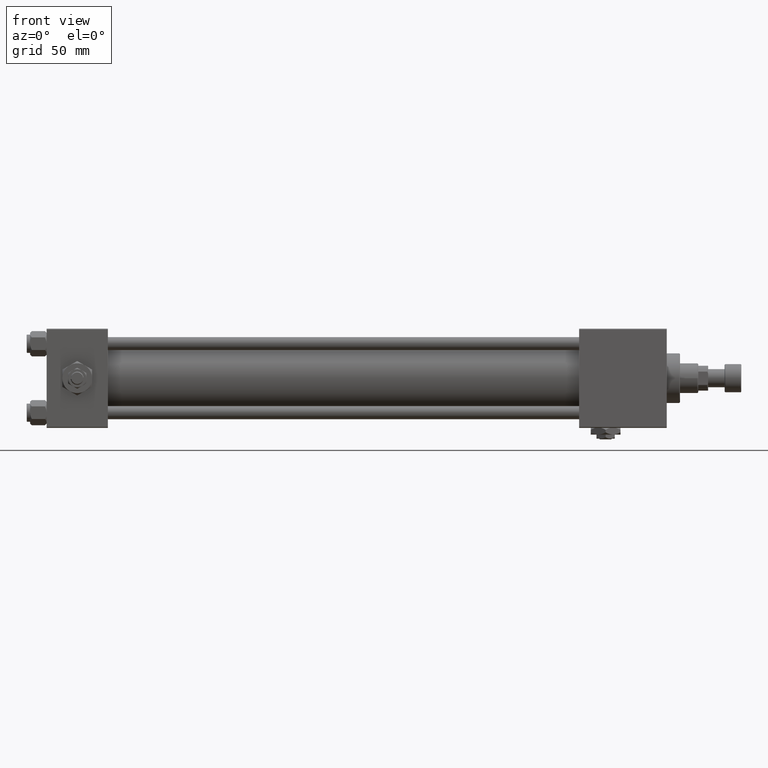
[diagram: clean part render]
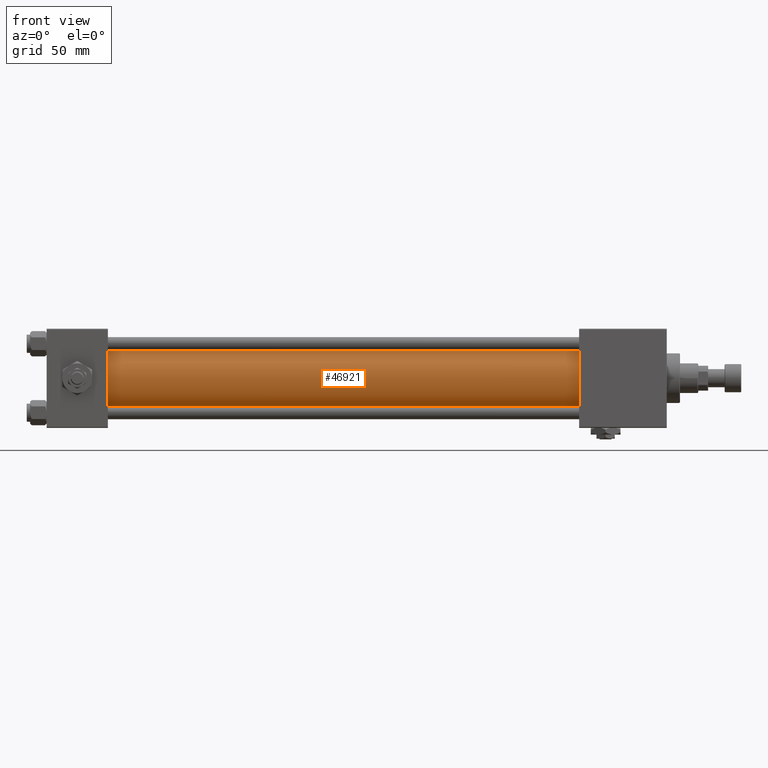
[diagram: same view with one face highlighted and labeled with its STEP entity id]
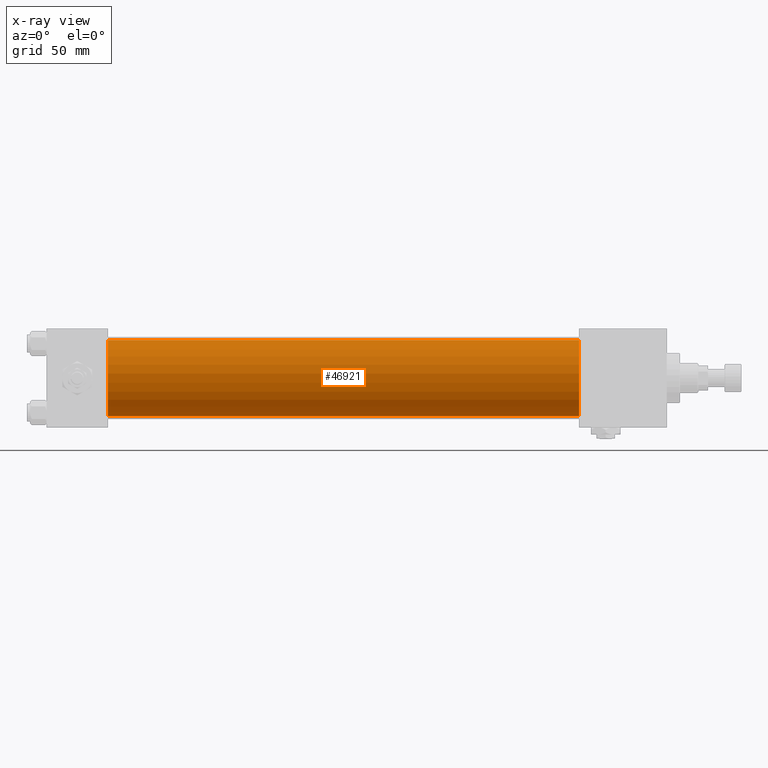
[diagram: x-ray of the same camera — body ghosted, the highlighted face saturated]
A machine part, front view. The second image highlights one B-rep face of the part: STEP entity #46921.
The next image is the same camera in x-ray: the body ghosted, the highlighted face saturated — about 0% of this face is hidden behind the body in this view.
In plain terms, the highlighted cylindrical surface (partial cylindrical patch) has radius 23 mm, axis along (-1, -0, -0).
Its self-contained STEP definition (entity closure, byte-faithful):
#25 = DIRECTION ( 'NONE',  ( 1.000000000000000000, 0.000000000000000000, 0.000000000000000000 ) ) ;
#412 = CARTESIAN_POINT ( 'NONE',  ( 36.99999999999997868, -2.602085213965210642E-15, 23.00000000000000000 ) ) ;
#609 = VECTOR ( 'NONE', #36157, 1000.000000000000000 ) ;
#3118 = CARTESIAN_POINT ( 'NONE',  ( 36.99999999999997868, 2.146024240737016609E-16, -23.00000000000000000 ) ) ;
#4143 = ORIENTED_EDGE ( 'NONE', *, *, #19544, .T. ) ;
#6062 = VERTEX_POINT ( 'NONE', #44622 ) ;
#6990 = CIRCLE ( 'NONE', #20620, 23.00000000000000000 ) ;
#7494 = DIRECTION ( 'NONE',  ( 0.000000000000000000, 0.000000000000000000, 1.000000000000000000 ) ) ;
#8539 = ORIENTED_EDGE ( 'NONE', *, *, #41413, .F. ) ;
#8648 = EDGE_CURVE ( 'NONE', #44137, #33747, #6990, .T. ) ;
#9489 = DIRECTION ( 'NONE',  ( 1.000000000000000000, -0.000000000000000000, 0.000000000000000000 ) ) ;
#11288 = AXIS2_PLACEMENT_3D ( 'NONE', #23683, #25, #39930 ) ;
#12723 = VECTOR ( 'NONE', #29319, 1000.000000000000000 ) ;
#16918 = CARTESIAN_POINT ( 'NONE',  ( 321.9999999999999432, -2.602085213965210642E-15, 23.00000000000000000 ) ) ;
#17496 = ORIENTED_EDGE ( 'NONE', *, *, #29267, .F. ) ;
#18722 = ORIENTED_EDGE ( 'NONE', *, *, #8648, .T. ) ;
#19228 = FACE_OUTER_BOUND ( 'NONE', #35192, .T. ) ;
#19544 = EDGE_CURVE ( 'NONE', #51324, #44137, #33316, .T. ) ;
#19907 = LINE ( 'NONE', #44398, #609 ) ;
#20620 = AXIS2_PLACEMENT_3D ( 'NONE', #45952, #9489, #41975 ) ;
#23683 = CARTESIAN_POINT ( 'NONE',  ( 321.9999999999999432, -2.602085213965210642E-15, 0.000000000000000000 ) ) ;
#29267 = EDGE_CURVE ( 'NONE', #51324, #6062, #46912, .T. ) ;
#29319 = DIRECTION ( 'NONE',  ( -1.000000000000000000, -0.000000000000000000, -0.000000000000000000 ) ) ;
#33316 = LINE ( 'NONE', #49528, #12723 ) ;
#33747 = VERTEX_POINT ( 'NONE', #3118 ) ;
#35192 = EDGE_LOOP ( 'NONE', ( #8539, #17496, #4143, #18722 ) ) ;
#35231 = CYLINDRICAL_SURFACE ( 'NONE', #45738, 23.00000000000000000 ) ;
#36157 = DIRECTION ( 'NONE',  ( -1.000000000000000000, -0.000000000000000000, -0.000000000000000000 ) ) ;
#39930 = DIRECTION ( 'NONE',  ( 0.000000000000000000, 0.000000000000000000, -1.000000000000000000 ) ) ;
#41413 = EDGE_CURVE ( 'NONE', #6062, #33747, #19907, .T. ) ;
#41975 = DIRECTION ( 'NONE',  ( 0.000000000000000000, 0.000000000000000000, 1.000000000000000000 ) ) ;
#44137 = VERTEX_POINT ( 'NONE', #412 ) ;
#44398 = CARTESIAN_POINT ( 'NONE',  ( 321.9999999999999432, 2.146024240737016609E-16, -23.00000000000000000 ) ) ;
#44622 = CARTESIAN_POINT ( 'NONE',  ( 321.9999999999999432, 2.146024240737016609E-16, -23.00000000000000000 ) ) ;
#45738 = AXIS2_PLACEMENT_3D ( 'NONE', #51432, #52222, #7494 ) ;
#45952 = CARTESIAN_POINT ( 'NONE',  ( 36.99999999999997868, -2.602085213965210642E-15, 0.000000000000000000 ) ) ;
#46912 = CIRCLE ( 'NONE', #11288, 23.00000000000000000 ) ;
#46921 = ADVANCED_FACE ( 'NONE', ( #19228 ), #35231, .T. ) ;
#49528 = CARTESIAN_POINT ( 'NONE',  ( 321.9999999999999432, -2.602085213965210642E-15, 23.00000000000000000 ) ) ;
#51324 = VERTEX_POINT ( 'NONE', #16918 ) ;
#51432 = CARTESIAN_POINT ( 'NONE',  ( 321.9999999999999432, -2.602085213965210642E-15, 0.000000000000000000 ) ) ;
#52222 = DIRECTION ( 'NONE',  ( -1.000000000000000000, -0.000000000000000000, -0.000000000000000000 ) ) ;